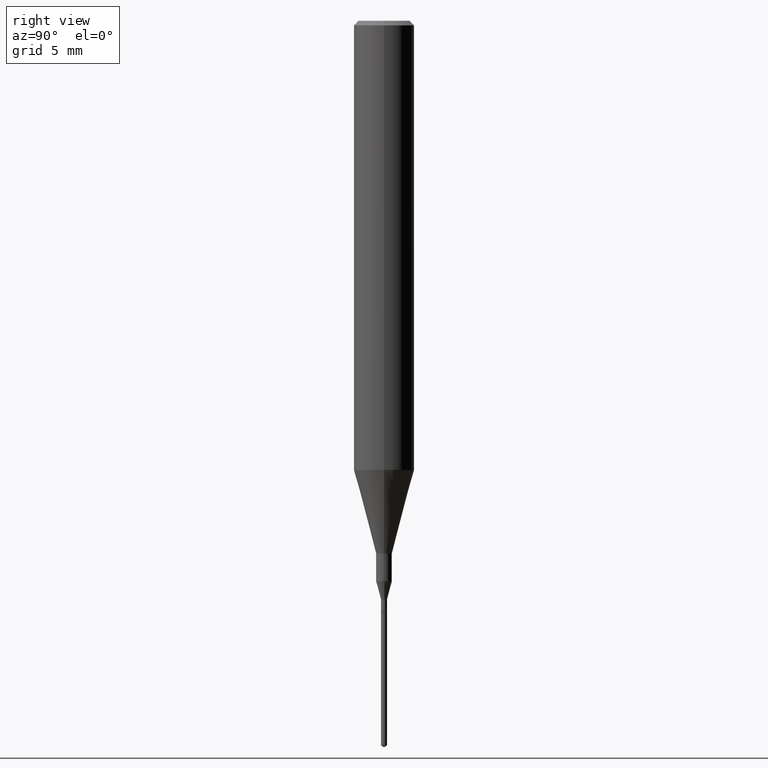
[diagram: clean part render]
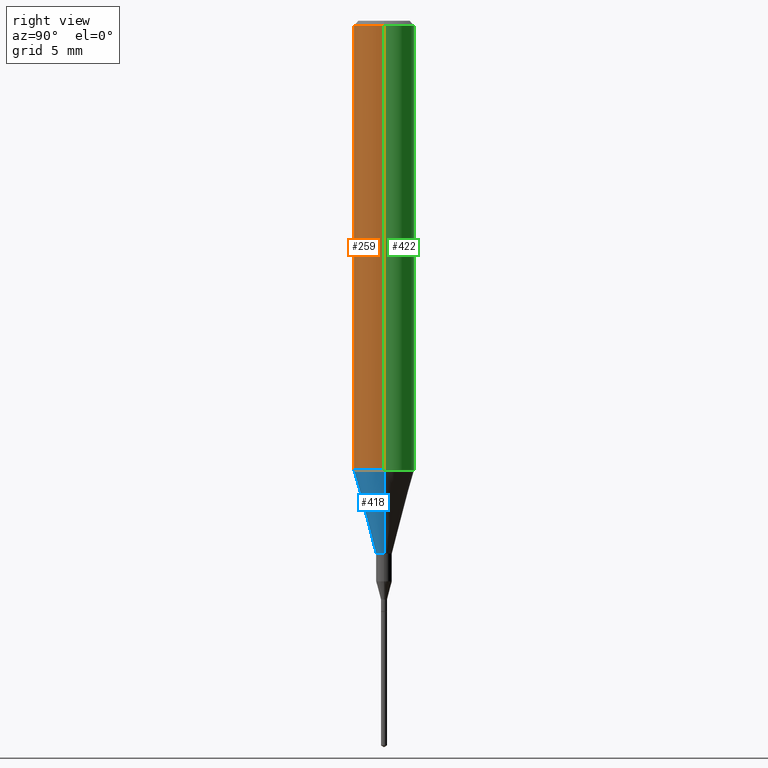
[diagram: same view with three faces highlighted in distinct colors, each labeled with its STEP entity id]
A machine part, right view with three faces highlighted in distinct colors.
Their STEP definitions:

[orange] entity #259 — the highlighted cylindrical surface (edge-blend (fillet) strip) has radius 1.5875 mm, axis along (-0, 0, 1).
#19 = DIRECTION ( 'NONE',  ( -2.445468806185136877E-29, 3.491481338843145188E-15, 1.000000000000000000 ) ) ;
#23 = CARTESIAN_POINT ( 'NONE',  ( -0.06250000000000005551, 4.440892098500630106E-16, -3.074334431409318916E-30 ) ) ;
#38 = CARTESIAN_POINT ( 'NONE',  ( 0.06250000000000005551, -4.364351673553920638E-16, 3.047610484872462323E-30 ) ) ;
#39 = ORIENTED_EDGE ( 'NONE', *, *, #193, .F. ) ;
#67 = CARTESIAN_POINT ( 'NONE',  ( -0.06250000000000000000, -1.191264174815165938E-15, -0.009375000000000063838 ) ) ;
#74 = VERTEX_POINT ( 'NONE', #282 ) ;
#83 = VECTOR ( 'NONE', #321, 39.37007874015748143 ) ;
#111 = DIRECTION ( 'NONE',  ( 1.000000000000000000, -6.982962677686266711E-15, 4.876176775795935232E-29 ) ) ;
#124 = ORIENTED_EDGE ( 'NONE', *, *, #391, .T. ) ;
#139 = LINE ( 'NONE', #38, #83 ) ;
#142 = CIRCLE ( 'NONE', #324, 0.06250000000000011102 ) ;
#164 = VERTEX_POINT ( 'NONE', #490 ) ;
#183 = FACE_OUTER_BOUND ( 'NONE', #404, .T. ) ;
#193 = EDGE_CURVE ( 'NONE', #278, #74, #459, .T. ) ;
#217 = LINE ( 'NONE', #23, #388 ) ;
#251 = CARTESIAN_POINT ( 'NONE',  ( 2.292627005798581061E-31, -3.273263755165471417E-17, -0.009375000000000063838 ) ) ;
#259 = ADVANCED_FACE ( 'NONE', ( #183 ), #325, .T. ) ;
#265 = AXIS2_PLACEMENT_3D ( 'NONE', #425, #467, #111 ) ;
#278 = VERTEX_POINT ( 'NONE', #67 ) ;
#282 = CARTESIAN_POINT ( 'NONE',  ( 0.06250000000000000000, -4.691678049070463404E-16, -0.009375000000000063838 ) ) ;
#283 = DIRECTION ( 'NONE',  ( 1.000000000000000000, -6.982962677686265922E-15, 0.000000000000000000 ) ) ;
#321 = DIRECTION ( 'NONE',  ( -2.445468806185136877E-29, 3.491481338843145188E-15, 1.000000000000000000 ) ) ;
#324 = AXIS2_PLACEMENT_3D ( 'NONE', #335, #472, #283 ) ;
#325 = CYLINDRICAL_SURFACE ( 'NONE', #265, 0.06250000000000005551 ) ;
#335 = CARTESIAN_POINT ( 'NONE',  ( 2.267909797027042920E-29, -3.237974131778804114E-15, -0.9273926501499395458 ) ) ;
#355 = AXIS2_PLACEMENT_3D ( 'NONE', #251, #393, #520 ) ;
#362 = VERTEX_POINT ( 'NONE', #540 ) ;
#388 = VECTOR ( 'NONE', #19, 39.37007874015748143 ) ;
#391 = EDGE_CURVE ( 'NONE', #362, #74, #139, .T. ) ;
#393 = DIRECTION ( 'NONE',  ( -2.445468806185136597E-29, 3.491481338843145583E-15, 1.000000000000000000 ) ) ;
#404 = EDGE_LOOP ( 'NONE', ( #480, #487, #124, #39 ) ) ;
#425 = CARTESIAN_POINT ( 'NONE',  ( 0.000000000000000000, 0.000000000000000000, 0.000000000000000000 ) ) ;
#459 = CIRCLE ( 'NONE', #355, 0.06250000000000000000 ) ;
#467 = DIRECTION ( 'NONE',  ( -2.445468806185136597E-29, 3.491481338843145583E-15, 1.000000000000000000 ) ) ;
#472 = DIRECTION ( 'NONE',  ( -2.445468806185136597E-29, 3.491481338843145583E-15, 1.000000000000000000 ) ) ;
#480 = ORIENTED_EDGE ( 'NONE', *, *, #527, .F. ) ;
#487 = ORIENTED_EDGE ( 'NONE', *, *, #549, .T. ) ;
#490 = CARTESIAN_POINT ( 'NONE',  ( -0.06250000000000011102, -2.793884921928740709E-15, -0.9273926501499395458 ) ) ;
#520 = DIRECTION ( 'NONE',  ( 1.000000000000000000, -6.982962677686266711E-15, 0.000000000000000000 ) ) ;
#527 = EDGE_CURVE ( 'NONE', #164, #278, #217, .T. ) ;
#540 = CARTESIAN_POINT ( 'NONE',  ( 0.06250000000000011102, -3.674409299134196572E-15, -0.9273926501499395458 ) ) ;
#549 = EDGE_CURVE ( 'NONE', #164, #362, #142, .T. ) ;

[blue] entity #418 — the highlighted conical surface has half-angle 15 deg.
#30 = DIRECTION ( 'NONE',  ( -2.445468806185136597E-29, 3.491481338843145583E-15, 1.000000000000000000 ) ) ;
#52 = FACE_OUTER_BOUND ( 'NONE', #263, .T. ) ;
#59 = DIRECTION ( 'NONE',  ( 0.2588190451025214611, 1.565188264969620982E-15, 0.9659258262890679791 ) ) ;
#89 = CARTESIAN_POINT ( 'NONE',  ( -0.01624999999999999709, -3.825859713010287951E-15, -1.100000000000000089 ) ) ;
#99 = DIRECTION ( 'NONE',  ( 1.000000000000000000, -6.982962677686265922E-15, 0.000000000000000000 ) ) ;
#112 = EDGE_CURVE ( 'NONE', #359, #164, #574, .T. ) ;
#126 = CARTESIAN_POINT ( 'NONE',  ( 2.690015686803650369E-29, -3.840629472727460101E-15, -1.100000000000000089 ) ) ;
#142 = CIRCLE ( 'NONE', #324, 0.06250000000000011102 ) ;
#164 = VERTEX_POINT ( 'NONE', #490 ) ;
#167 = CONICAL_SURFACE ( 'NONE', #295, 0.06250000000000011102, 0.2617993877991501850 ) ;
#170 = DIRECTION ( 'NONE',  ( 1.000000000000000000, -6.982962677686259611E-15, 0.000000000000000000 ) ) ;
#173 = DIRECTION ( 'NONE',  ( -2.445468806185136597E-29, 3.491481338843145583E-15, 1.000000000000000000 ) ) ;
#240 = LINE ( 'NONE', #292, #400 ) ;
#262 = EDGE_CURVE ( 'NONE', #312, #362, #240, .T. ) ;
#263 = EDGE_LOOP ( 'NONE', ( #442, #372, #351, #398 ) ) ;
#283 = DIRECTION ( 'NONE',  ( 1.000000000000000000, -6.982962677686265922E-15, 0.000000000000000000 ) ) ;
#286 = CARTESIAN_POINT ( 'NONE',  ( -0.06250000000000011102, -2.793884921928740709E-15, -0.9273926501499395458 ) ) ;
#292 = CARTESIAN_POINT ( 'NONE',  ( 0.06250000000000011102, -3.674409299134196572E-15, -0.9273926501499395458 ) ) ;
#295 = AXIS2_PLACEMENT_3D ( 'NONE', #584, #173, #99 ) ;
#312 = VERTEX_POINT ( 'NONE', #432 ) ;
#314 = VECTOR ( 'NONE', #515, 39.37007874015748143 ) ;
#324 = AXIS2_PLACEMENT_3D ( 'NONE', #335, #472, #283 ) ;
#335 = CARTESIAN_POINT ( 'NONE',  ( 2.267909797027042920E-29, -3.237974131778804114E-15, -0.9273926501499395458 ) ) ;
#351 = ORIENTED_EDGE ( 'NONE', *, *, #262, .T. ) ;
#359 = VERTEX_POINT ( 'NONE', #89 ) ;
#362 = VERTEX_POINT ( 'NONE', #540 ) ;
#372 = ORIENTED_EDGE ( 'NONE', *, *, #470, .T. ) ;
#398 = ORIENTED_EDGE ( 'NONE', *, *, #549, .F. ) ;
#400 = VECTOR ( 'NONE', #59, 39.37007874015748143 ) ;
#418 = ADVANCED_FACE ( 'NONE', ( #52 ), #167, .T. ) ;
#432 = CARTESIAN_POINT ( 'NONE',  ( 0.01624999999999999709, -3.954102616239861778E-15, -1.100000000000000089 ) ) ;
#439 = CIRCLE ( 'NONE', #492, 0.01624999999999999709 ) ;
#442 = ORIENTED_EDGE ( 'NONE', *, *, #112, .F. ) ;
#470 = EDGE_CURVE ( 'NONE', #359, #312, #439, .T. ) ;
#472 = DIRECTION ( 'NONE',  ( -2.445468806185136597E-29, 3.491481338843145583E-15, 1.000000000000000000 ) ) ;
#490 = CARTESIAN_POINT ( 'NONE',  ( -0.06250000000000011102, -2.793884921928740709E-15, -0.9273926501499395458 ) ) ;
#492 = AXIS2_PLACEMENT_3D ( 'NONE', #126, #30, #170 ) ;
#515 = DIRECTION ( 'NONE',  ( -0.2588190451025214611, 5.211531920934550253E-15, 0.9659258262890679791 ) ) ;
#540 = CARTESIAN_POINT ( 'NONE',  ( 0.06250000000000011102, -3.674409299134196572E-15, -0.9273926501499395458 ) ) ;
#549 = EDGE_CURVE ( 'NONE', #164, #362, #142, .T. ) ;
#574 = LINE ( 'NONE', #286, #314 ) ;
#584 = CARTESIAN_POINT ( 'NONE',  ( 2.267909797027042920E-29, -3.237974131778804114E-15, -0.9273926501499395458 ) ) ;

[green] entity #422 — the highlighted cylindrical surface (edge-blend (fillet) strip) has radius 1.5875 mm, axis along (-0, 0, 1).
#16 = DIRECTION ( 'NONE',  ( 1.000000000000000000, -6.982962677686265922E-15, 0.000000000000000000 ) ) ;
#19 = DIRECTION ( 'NONE',  ( -2.445468806185136877E-29, 3.491481338843145188E-15, 1.000000000000000000 ) ) ;
#23 = CARTESIAN_POINT ( 'NONE',  ( -0.06250000000000005551, 4.440892098500630106E-16, -3.074334431409318916E-30 ) ) ;
#36 = EDGE_LOOP ( 'NONE', ( #171, #543, #162, #57 ) ) ;
#37 = DIRECTION ( 'NONE',  ( 1.000000000000000000, -6.982962677686266711E-15, 0.000000000000000000 ) ) ;
#38 = CARTESIAN_POINT ( 'NONE',  ( 0.06250000000000005551, -4.364351673553920638E-16, 3.047610484872462323E-30 ) ) ;
#50 = FACE_OUTER_BOUND ( 'NONE', #36, .T. ) ;
#55 = DIRECTION ( 'NONE',  ( 1.000000000000000000, -6.982962677686266711E-15, 4.876176775795935232E-29 ) ) ;
#57 = ORIENTED_EDGE ( 'NONE', *, *, #391, .F. ) ;
#67 = CARTESIAN_POINT ( 'NONE',  ( -0.06250000000000000000, -1.191264174815165938E-15, -0.009375000000000063838 ) ) ;
#74 = VERTEX_POINT ( 'NONE', #282 ) ;
#83 = VECTOR ( 'NONE', #321, 39.37007874015748143 ) ;
#130 = EDGE_CURVE ( 'NONE', #74, #278, #427, .T. ) ;
#139 = LINE ( 'NONE', #38, #83 ) ;
#141 = AXIS2_PLACEMENT_3D ( 'NONE', #514, #570, #16 ) ;
#162 = ORIENTED_EDGE ( 'NONE', *, *, #130, .F. ) ;
#164 = VERTEX_POINT ( 'NONE', #490 ) ;
#171 = ORIENTED_EDGE ( 'NONE', *, *, #270, .T. ) ;
#217 = LINE ( 'NONE', #23, #388 ) ;
#256 = CIRCLE ( 'NONE', #141, 0.06250000000000011102 ) ;
#270 = EDGE_CURVE ( 'NONE', #362, #164, #256, .T. ) ;
#278 = VERTEX_POINT ( 'NONE', #67 ) ;
#282 = CARTESIAN_POINT ( 'NONE',  ( 0.06250000000000000000, -4.691678049070463404E-16, -0.009375000000000063838 ) ) ;
#321 = DIRECTION ( 'NONE',  ( -2.445468806185136877E-29, 3.491481338843145188E-15, 1.000000000000000000 ) ) ;
#332 = CARTESIAN_POINT ( 'NONE',  ( 0.000000000000000000, 0.000000000000000000, 0.000000000000000000 ) ) ;
#362 = VERTEX_POINT ( 'NONE', #540 ) ;
#375 = AXIS2_PLACEMENT_3D ( 'NONE', #457, #402, #37 ) ;
#388 = VECTOR ( 'NONE', #19, 39.37007874015748143 ) ;
#391 = EDGE_CURVE ( 'NONE', #362, #74, #139, .T. ) ;
#402 = DIRECTION ( 'NONE',  ( -2.445468806185136597E-29, 3.491481338843145583E-15, 1.000000000000000000 ) ) ;
#419 = CYLINDRICAL_SURFACE ( 'NONE', #473, 0.06250000000000005551 ) ;
#422 = ADVANCED_FACE ( 'NONE', ( #50 ), #419, .T. ) ;
#427 = CIRCLE ( 'NONE', #375, 0.06250000000000000000 ) ;
#457 = CARTESIAN_POINT ( 'NONE',  ( 2.292627005798581061E-31, -3.273263755165471417E-17, -0.009375000000000063838 ) ) ;
#473 = AXIS2_PLACEMENT_3D ( 'NONE', #332, #505, #55 ) ;
#490 = CARTESIAN_POINT ( 'NONE',  ( -0.06250000000000011102, -2.793884921928740709E-15, -0.9273926501499395458 ) ) ;
#505 = DIRECTION ( 'NONE',  ( -2.445468806185136597E-29, 3.491481338843145583E-15, 1.000000000000000000 ) ) ;
#514 = CARTESIAN_POINT ( 'NONE',  ( 2.267909797027042920E-29, -3.237974131778804114E-15, -0.9273926501499395458 ) ) ;
#527 = EDGE_CURVE ( 'NONE', #164, #278, #217, .T. ) ;
#540 = CARTESIAN_POINT ( 'NONE',  ( 0.06250000000000011102, -3.674409299134196572E-15, -0.9273926501499395458 ) ) ;
#543 = ORIENTED_EDGE ( 'NONE', *, *, #527, .T. ) ;
#570 = DIRECTION ( 'NONE',  ( -2.445468806185136597E-29, 3.491481338843145583E-15, 1.000000000000000000 ) ) ;